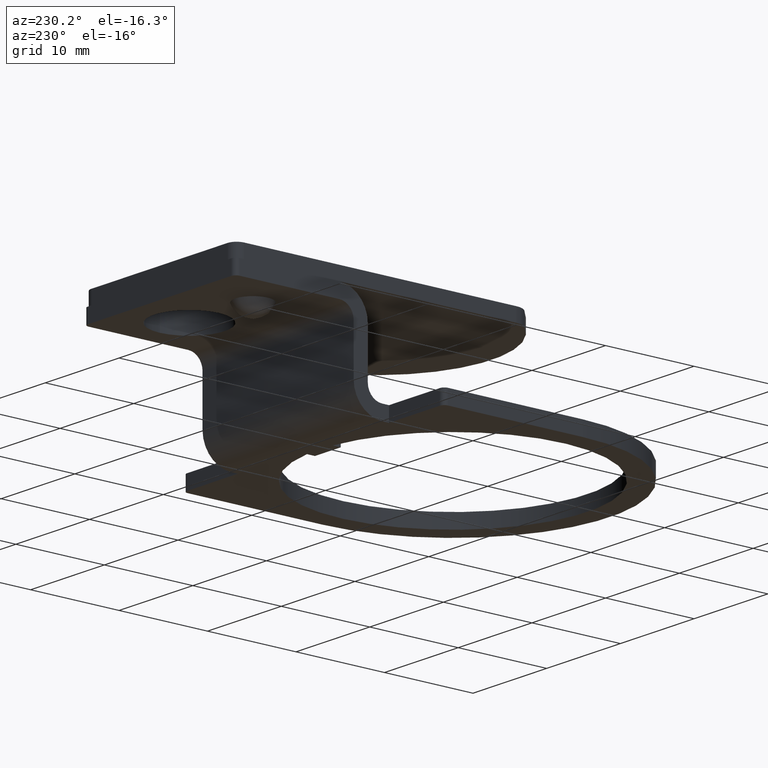
[diagram: clean part render]
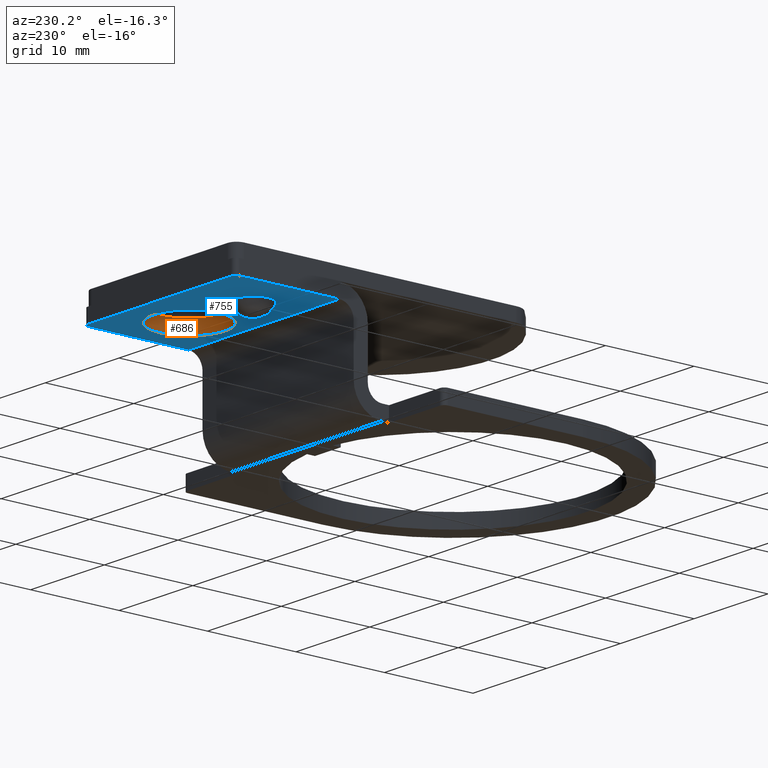
[diagram: same view with the hole feature highlighted: cylindrical wall and planar end face, labeled with their STEP entity ids]
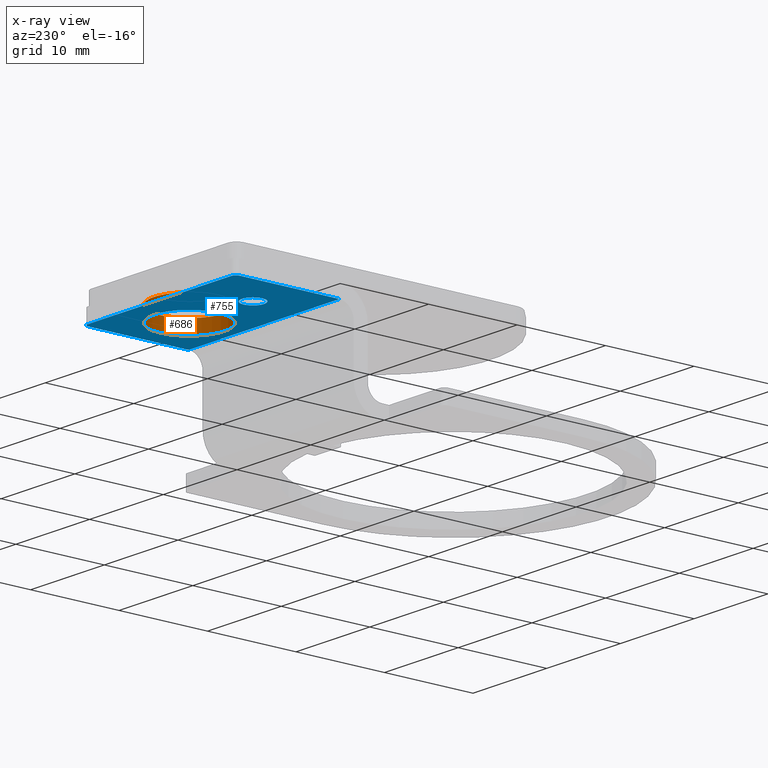
[diagram: x-ray of the same camera — body ghosted, the hole faces saturated]
A machine part, auxiliary view. The highlighted faces form one hole feature of diameter 8 mm: the cylindrical wall (entity #686, orange) and its adjacent planar end face (entity #755, blue) — they share a circular edge in the B-rep.
The next image is the same camera in x-ray (body ghosted, the hole faces saturated) — the bore reads through the body.
Wall:
#220=CARTESIAN_POINT('',(10.905585628369575,7.958010052756922,11.750000000000004));
#221=VERTEX_POINT('',#220);
#222=CARTESIAN_POINT('',(6.905585628369577,7.958010052756922,11.750000000000004));
#223=DIRECTION('',(0.0,0.0,-1.0));
#224=DIRECTION('',(-1.0,0.0,0.0));
#225=AXIS2_PLACEMENT_3D('',#222,#223,#224);
#226=CIRCLE('',#225,4.0);
#227=EDGE_CURVE('',#221,#221,#226,.T.);
#667=CARTESIAN_POINT('',(6.905585628369577,7.958010052756922,11.750000000000004));
#668=DIRECTION('',(0.0,0.0,-1.0));
#669=DIRECTION('',(-1.0,0.0,0.0));
#670=AXIS2_PLACEMENT_3D('',#667,#668,#669);
#671=CYLINDRICAL_SURFACE('',#670,4.0);
#672=CARTESIAN_POINT('',(10.905585628369575,7.958010052756922,10.150000000000002));
#673=VERTEX_POINT('',#672);
#674=CARTESIAN_POINT('',(6.905585628369577,7.958010052756922,10.150000000000002));
#675=DIRECTION('',(0.0,0.0,1.0));
#676=DIRECTION('',(-1.0,0.0,0.0));
#677=AXIS2_PLACEMENT_3D('',#674,#675,#676);
#678=CIRCLE('',#677,4.0);
#679=EDGE_CURVE('',#673,#673,#678,.T.);
#680=ORIENTED_EDGE('',*,*,#679,.F.);
#681=EDGE_LOOP('',(#680));
#682=FACE_OUTER_BOUND('',#681,.T.);
#683=ORIENTED_EDGE('',*,*,#227,.F.);
#684=EDGE_LOOP('',(#683));
#685=FACE_BOUND('',#684,.T.);
#686=ADVANCED_FACE('',(#682,#685),#671,.F.);
End face:
#123=CARTESIAN_POINT('',(-6.594414371630420,14.458010052756922,10.150000000000002));
#124=VERTEX_POINT('',#123);
#131=CARTESIAN_POINT('',(-7.094414371630422,13.958010052756922,10.150000000000002));
#132=VERTEX_POINT('',#131);
#133=CARTESIAN_POINT('',(-6.594414371630420,13.958010052756922,10.150000000000002));
#134=DIRECTION('',(0.0,0.0,1.0));
#135=DIRECTION('',(-0.707106781186546,0.707106781186549,0.0));
#136=AXIS2_PLACEMENT_3D('',#133,#134,#135);
#137=CIRCLE('',#136,0.500000000000000);
#138=EDGE_CURVE('',#124,#132,#137,.T.);
#163=CARTESIAN_POINT('',(12.905585628369575,14.458010052756922,10.150000000000002));
#164=VERTEX_POINT('',#163);
#171=CARTESIAN_POINT('',(-6.594414371630420,14.458010052756922,10.150000000000002));
#172=DIRECTION('',(1.0,0.0,0.0));
#173=VECTOR('',#172,19.499999999999996);
#174=LINE('',#171,#173);
#175=EDGE_CURVE('',#124,#164,#174,.T.);
#248=CARTESIAN_POINT('',(13.405585628369575,13.958010052756924,10.150000000000002));
#249=VERTEX_POINT('',#248);
#250=CARTESIAN_POINT('',(12.905585628369575,13.958010052756924,10.150000000000002));
#251=DIRECTION('',(0.0,0.0,1.0));
#252=DIRECTION('',(0.707106781186551,0.707106781186544,0.0));
#253=AXIS2_PLACEMENT_3D('',#250,#251,#252);
#254=CIRCLE('',#253,0.500000000000000);
#255=EDGE_CURVE('',#249,#164,#254,.T.);
#342=CARTESIAN_POINT('',(13.405585628369575,2.658010052756930,10.150000000000002));
#343=VERTEX_POINT('',#342);
#351=CARTESIAN_POINT('',(13.405585628369575,13.958010052756924,10.150000000000002));
#352=DIRECTION('',(0.0,-1.0,0.0));
#353=VECTOR('',#352,11.299999999999994);
#354=LINE('',#351,#353);
#355=EDGE_CURVE('',#249,#343,#354,.T.);
#672=CARTESIAN_POINT('',(10.905585628369575,7.958010052756922,10.150000000000002));
#673=VERTEX_POINT('',#672);
#674=CARTESIAN_POINT('',(6.905585628369577,7.958010052756922,10.150000000000002));
#675=DIRECTION('',(0.0,0.0,1.0));
#676=DIRECTION('',(-1.0,0.0,0.0));
#677=AXIS2_PLACEMENT_3D('',#674,#675,#676);
#678=CIRCLE('',#677,4.0);
#679=EDGE_CURVE('',#673,#673,#678,.T.);
#692=CARTESIAN_POINT('',(-0.469414371630421,7.958010052756922,10.150000000000002));
#693=VERTEX_POINT('',#692);
#694=CARTESIAN_POINT('',(-1.719414371630421,7.958010052756922,10.150000000000002));
#695=DIRECTION('',(0.0,0.0,1.0));
#696=DIRECTION('',(-1.0,0.0,0.0));
#697=AXIS2_PLACEMENT_3D('',#694,#695,#696);
#698=CIRCLE('',#697,1.250000000000000);
#699=EDGE_CURVE('',#693,#693,#698,.T.);
#724=CARTESIAN_POINT('',(-7.094414371630422,14.458010052756922,10.150000000000002));
#725=DIRECTION('',(0.0,0.0,-1.0));
#726=DIRECTION('',(-1.0,0.0,0.0));
#727=AXIS2_PLACEMENT_3D('',#724,#725,#726);
#728=PLANE('',#727);
#729=ORIENTED_EDGE('',*,*,#138,.F.);
#730=ORIENTED_EDGE('',*,*,#175,.T.);
#731=ORIENTED_EDGE('',*,*,#255,.F.);
#732=ORIENTED_EDGE('',*,*,#355,.T.);
#733=CARTESIAN_POINT('',(-7.094414371630422,2.658010052756923,10.150000000000002));
#734=VERTEX_POINT('',#733);
#735=CARTESIAN_POINT('',(-7.094414371630422,2.658010052756923,10.150000000000002));
#736=DIRECTION('',(1.0,0.0,0.0));
#737=VECTOR('',#736,20.499999999999996);
#738=LINE('',#735,#737);
#739=EDGE_CURVE('',#734,#343,#738,.T.);
#740=ORIENTED_EDGE('',*,*,#739,.F.);
#741=CARTESIAN_POINT('',(-7.094414371630422,2.658010052756923,10.150000000000002));
#742=DIRECTION('',(0.0,1.0,0.0));
#743=VECTOR('',#742,11.299999999999999);
#744=LINE('',#741,#743);
#745=EDGE_CURVE('',#734,#132,#744,.T.);
#746=ORIENTED_EDGE('',*,*,#745,.T.);
#747=EDGE_LOOP('',(#729,#730,#731,#732,#740,#746));
#748=FACE_OUTER_BOUND('',#747,.T.);
#749=ORIENTED_EDGE('',*,*,#679,.T.);
#750=EDGE_LOOP('',(#749));
#751=FACE_BOUND('',#750,.T.);
#752=ORIENTED_EDGE('',*,*,#699,.T.);
#753=EDGE_LOOP('',(#752));
#754=FACE_BOUND('',#753,.T.);
#755=ADVANCED_FACE('',(#748,#751,#754),#728,.T.);